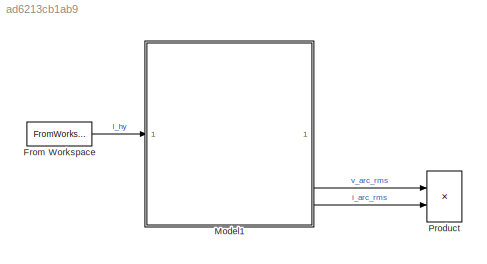
MODEL slx_ad6213cb1ab9
KIND model
CONFIG AbsTol = auto
CONFIG EnableMultiTasking = off
CONFIG FixedStep = 1e-5
CONFIG MaxStep = auto
CONFIG MinStep = auto
CONFIG RelTol = 1e-3
CONFIG SampleTimeConstraint = Unconstrained
CONFIG SolverName = ode14x
CONFIG StartTime = 0.0
CONFIG StopTime = 3
BLOCK [FromWorkspace] From Workspace
  VariableName = l_hy
BLOCK [ModelReference] Model1
  ModelNameDialog = power_supply_test.slx
  ModelReferenceVersion = 1.105
BLOCK [Product] Product
LINE From Workspace:1 -> Model1:1
LINE Model1:6 -> Product:1
LINE Model1:7 -> Product:2
